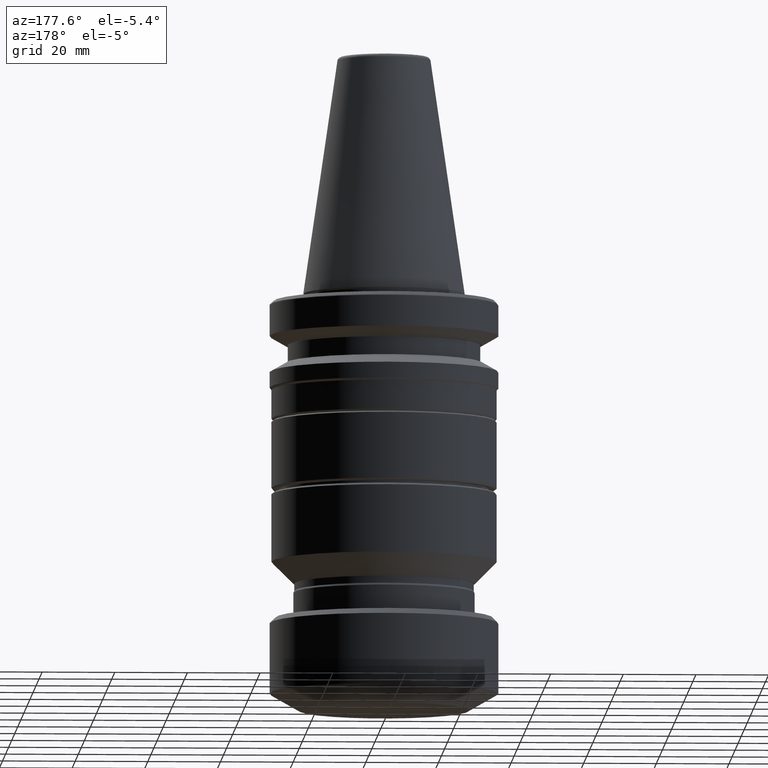
[diagram: clean part render]
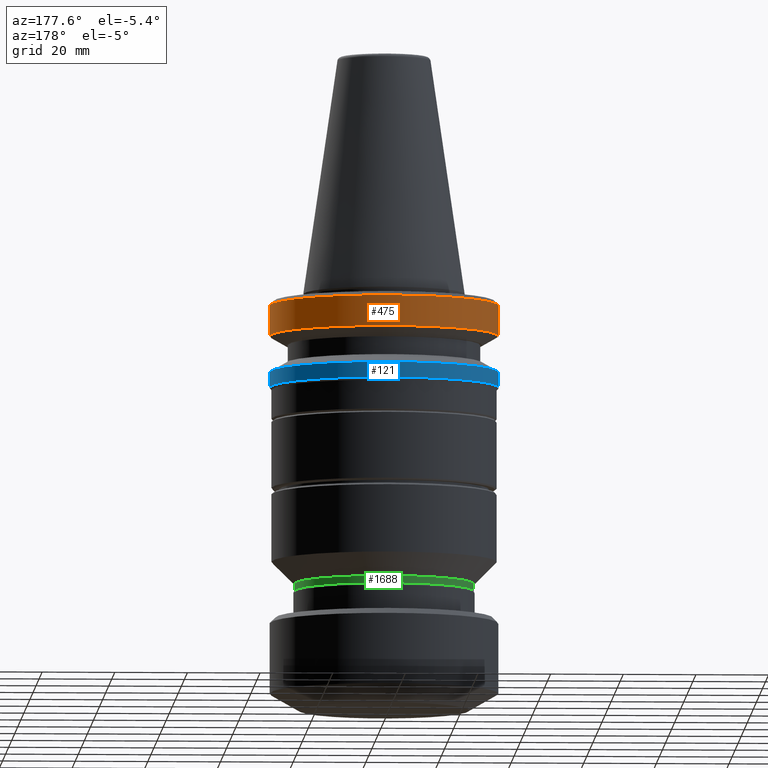
[diagram: same view with three faces highlighted in distinct colors, each labeled with its STEP entity id]
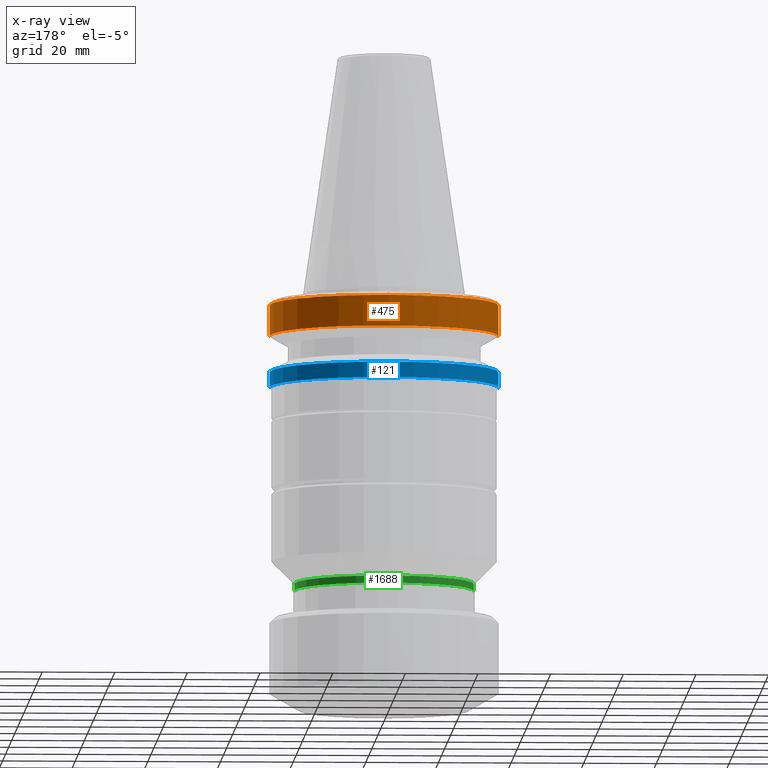
[diagram: x-ray of the same camera — body ghosted, the three highlighted faces saturated]
A machine part, auxiliary view with three faces highlighted in distinct colors.
The next image is the same camera in x-ray (body ghosted, the three faces saturated) — at least one of them is partly hidden behind the body in this view.
Their STEP definitions:

[orange] entity #475 — the highlighted cylindrical surface (partial cylindrical patch) has radius 31.5 mm, axis along (-0, -0, 1).
#4 = EDGE_LOOP ( 'NONE', ( #929, #1041, #1131, #647 ) ) ;
#8 = LINE ( 'NONE', #502, #30 ) ;
#30 = VECTOR ( 'NONE', #1273, 1000.000000000000000 ) ;
#44 = VERTEX_POINT ( 'NONE', #375 ) ;
#66 = CARTESIAN_POINT ( 'NONE',  ( 0.0000000000000000000, 0.0000000000000000000, -3.165685424949243700 ) ) ;
#199 = DIRECTION ( 'NONE',  ( 1.000000000000000000, 0.0000000000000000000, 0.0000000000000000000 ) ) ;
#314 = DIRECTION ( 'NONE',  ( 1.000000000000000000, 0.0000000000000000000, 0.0000000000000000000 ) ) ;
#318 = DIRECTION ( 'NONE',  ( -0.0000000000000000000, -0.0000000000000000000, 1.000000000000000000 ) ) ;
#341 = AXIS2_PLACEMENT_3D ( 'NONE', #66, #1096, #199 ) ;
#375 = CARTESIAN_POINT ( 'NONE',  ( 31.49999999999999300, 0.0000000000000000000, -3.165685424949243700 ) ) ;
#420 = VERTEX_POINT ( 'NONE', #682 ) ;
#475 = ADVANCED_FACE ( 'NONE', ( #854 ), #704, .T. ) ;
#502 = CARTESIAN_POINT ( 'NONE',  ( -31.50000000000000000, 3.857637417314162700E-015, 69.75694866325665100 ) ) ;
#524 = AXIS2_PLACEMENT_3D ( 'NONE', #809, #1888, #978 ) ;
#647 = ORIENTED_EDGE ( 'NONE', *, *, #1059, .F. ) ;
#682 = CARTESIAN_POINT ( 'NONE',  ( -31.50000000000000000, 3.857637417314162700E-015, -11.59985799368323700 ) ) ;
#704 = CYLINDRICAL_SURFACE ( 'NONE', #1426, 31.50000000000000000 ) ;
#745 = CIRCLE ( 'NONE', #524, 31.50000000000000000 ) ;
#794 = CARTESIAN_POINT ( 'NONE',  ( -31.49999999999999300, 3.857637417314161900E-015, -3.165685424949243700 ) ) ;
#809 = CARTESIAN_POINT ( 'NONE',  ( 0.0000000000000000000, 0.0000000000000000000, -11.59985799368323700 ) ) ;
#854 = FACE_OUTER_BOUND ( 'NONE', #4, .T. ) ;
#929 = ORIENTED_EDGE ( 'NONE', *, *, #1485, .T. ) ;
#958 = VERTEX_POINT ( 'NONE', #794 ) ;
#978 = DIRECTION ( 'NONE',  ( 1.000000000000000000, 0.0000000000000000000, 0.0000000000000000000 ) ) ;
#986 = EDGE_CURVE ( 'NONE', #420, #958, #8, .T. ) ;
#1035 = CARTESIAN_POINT ( 'NONE',  ( 31.50000000000000000, 0.0000000000000000000, -11.59985799368323700 ) ) ;
#1041 = ORIENTED_EDGE ( 'NONE', *, *, #986, .T. ) ;
#1059 = EDGE_CURVE ( 'NONE', #1756, #44, #1827, .T. ) ;
#1096 = DIRECTION ( 'NONE',  ( -0.0000000000000000000, -0.0000000000000000000, 1.000000000000000000 ) ) ;
#1131 = ORIENTED_EDGE ( 'NONE', *, *, #1857, .F. ) ;
#1273 = DIRECTION ( 'NONE',  ( -0.0000000000000000000, -0.0000000000000000000, 1.000000000000000000 ) ) ;
#1279 = CARTESIAN_POINT ( 'NONE',  ( 31.50000000000000000, 0.0000000000000000000, 69.75694866325665100 ) ) ;
#1342 = VECTOR ( 'NONE', #1730, 1000.000000000000000 ) ;
#1426 = AXIS2_PLACEMENT_3D ( 'NONE', #1667, #318, #314 ) ;
#1485 = EDGE_CURVE ( 'NONE', #1756, #420, #745, .T. ) ;
#1667 = CARTESIAN_POINT ( 'NONE',  ( 0.0000000000000000000, 0.0000000000000000000, 69.75694866325665100 ) ) ;
#1730 = DIRECTION ( 'NONE',  ( -0.0000000000000000000, -0.0000000000000000000, 1.000000000000000000 ) ) ;
#1756 = VERTEX_POINT ( 'NONE', #1035 ) ;
#1827 = LINE ( 'NONE', #1279, #1342 ) ;
#1849 = CIRCLE ( 'NONE', #341, 31.49999999999999300 ) ;
#1857 = EDGE_CURVE ( 'NONE', #44, #958, #1849, .T. ) ;
#1888 = DIRECTION ( 'NONE',  ( -0.0000000000000000000, -0.0000000000000000000, 1.000000000000000000 ) ) ;

[blue] entity #121 — the highlighted cylindrical surface (partial cylindrical patch) has radius 31.5 mm, axis along (-0, -0, 1).
#17 = CARTESIAN_POINT ( 'NONE',  ( -31.50000000000000000, 3.857637417314162700E-015, -21.60014200631675500 ) ) ;
#69 = AXIS2_PLACEMENT_3D ( 'NONE', #123, #1310, #1460 ) ;
#84 = VERTEX_POINT ( 'NONE', #304 ) ;
#120 = CARTESIAN_POINT ( 'NONE',  ( 0.0000000000000000000, 0.0000000000000000000, -25.83431457505076900 ) ) ;
#121 = ADVANCED_FACE ( 'NONE', ( #1223 ), #1259, .T. ) ;
#123 = CARTESIAN_POINT ( 'NONE',  ( 0.0000000000000000000, 0.0000000000000000000, -21.60014200631675500 ) ) ;
#136 = CIRCLE ( 'NONE', #69, 31.50000000000000000 ) ;
#188 = ORIENTED_EDGE ( 'NONE', *, *, #1556, .T. ) ;
#206 = DIRECTION ( 'NONE',  ( 1.000000000000000000, 0.0000000000000000000, 0.0000000000000000000 ) ) ;
#301 = DIRECTION ( 'NONE',  ( -0.0000000000000000000, -0.0000000000000000000, 1.000000000000000000 ) ) ;
#304 = CARTESIAN_POINT ( 'NONE',  ( 31.50000000000000000, 0.0000000000000000000, -21.60014200631675500 ) ) ;
#349 = VERTEX_POINT ( 'NONE', #382 ) ;
#382 = CARTESIAN_POINT ( 'NONE',  ( 31.50000000000000000, 0.0000000000000000000, -25.83431457505076900 ) ) ;
#401 = DIRECTION ( 'NONE',  ( -0.0000000000000000000, -0.0000000000000000000, 1.000000000000000000 ) ) ;
#427 = DIRECTION ( 'NONE',  ( -0.0000000000000000000, -0.0000000000000000000, 1.000000000000000000 ) ) ;
#437 = ORIENTED_EDGE ( 'NONE', *, *, #1414, .T. ) ;
#441 = DIRECTION ( 'NONE',  ( 1.000000000000000000, 0.0000000000000000000, 0.0000000000000000000 ) ) ;
#504 = LINE ( 'NONE', #731, #1114 ) ;
#551 = AXIS2_PLACEMENT_3D ( 'NONE', #1229, #301, #441 ) ;
#665 = CIRCLE ( 'NONE', #1675, 31.50000000000000000 ) ;
#723 = ORIENTED_EDGE ( 'NONE', *, *, #1681, .F. ) ;
#731 = CARTESIAN_POINT ( 'NONE',  ( 31.50000000000000000, 0.0000000000000000000, 69.75694866325665100 ) ) ;
#823 = EDGE_LOOP ( 'NONE', ( #437, #188, #1803, #723 ) ) ;
#872 = EDGE_CURVE ( 'NONE', #84, #1603, #136, .T. ) ;
#981 = VERTEX_POINT ( 'NONE', #1116 ) ;
#1103 = DIRECTION ( 'NONE',  ( -0.0000000000000000000, -0.0000000000000000000, 1.000000000000000000 ) ) ;
#1114 = VECTOR ( 'NONE', #427, 1000.000000000000000 ) ;
#1116 = CARTESIAN_POINT ( 'NONE',  ( -31.50000000000000000, 3.857637417314162700E-015, -25.83431457505076900 ) ) ;
#1223 = FACE_OUTER_BOUND ( 'NONE', #823, .T. ) ;
#1229 = CARTESIAN_POINT ( 'NONE',  ( 0.0000000000000000000, 0.0000000000000000000, 69.75694866325665100 ) ) ;
#1259 = CYLINDRICAL_SURFACE ( 'NONE', #551, 31.50000000000000000 ) ;
#1310 = DIRECTION ( 'NONE',  ( -0.0000000000000000000, -0.0000000000000000000, 1.000000000000000000 ) ) ;
#1363 = VECTOR ( 'NONE', #401, 1000.000000000000000 ) ;
#1414 = EDGE_CURVE ( 'NONE', #349, #981, #665, .T. ) ;
#1432 = LINE ( 'NONE', #1773, #1363 ) ;
#1460 = DIRECTION ( 'NONE',  ( 1.000000000000000000, 0.0000000000000000000, 0.0000000000000000000 ) ) ;
#1556 = EDGE_CURVE ( 'NONE', #981, #1603, #1432, .T. ) ;
#1603 = VERTEX_POINT ( 'NONE', #17 ) ;
#1675 = AXIS2_PLACEMENT_3D ( 'NONE', #120, #1103, #206 ) ;
#1681 = EDGE_CURVE ( 'NONE', #349, #84, #504, .T. ) ;
#1773 = CARTESIAN_POINT ( 'NONE',  ( -31.50000000000000000, 3.857637417314162700E-015, 69.75694866325665100 ) ) ;
#1803 = ORIENTED_EDGE ( 'NONE', *, *, #872, .F. ) ;

[green] entity #1688 — the highlighted cylindrical surface (partial cylindrical patch) has radius 24.7 mm, axis along (-0, -0, 1).
#77 = ORIENTED_EDGE ( 'NONE', *, *, #1458, .T. ) ;
#193 = EDGE_LOOP ( 'NONE', ( #736, #77, #1161, #1583 ) ) ;
#282 = AXIS2_PLACEMENT_3D ( 'NONE', #1015, #1770, #394 ) ;
#344 = CARTESIAN_POINT ( 'NONE',  ( -24.69999999999961200, 3.024877593893914900E-015, 107.6183603081325900 ) ) ;
#347 = LINE ( 'NONE', #833, #350 ) ;
#350 = VECTOR ( 'NONE', #1440, 1000.000000000000000 ) ;
#380 = AXIS2_PLACEMENT_3D ( 'NONE', #1813, #433, #898 ) ;
#394 = DIRECTION ( 'NONE',  ( 1.000000000000000000, 0.0000000000000000000, 0.0000000000000000000 ) ) ;
#414 = LINE ( 'NONE', #344, #1578 ) ;
#433 = DIRECTION ( 'NONE',  ( -0.0000000000000000000, -0.0000000000000000000, 1.000000000000000000 ) ) ;
#493 = CARTESIAN_POINT ( 'NONE',  ( 0.0000000000000000000, 0.0000000000000000000, -80.05000000000661900 ) ) ;
#518 = CIRCLE ( 'NONE', #282, 24.69999999999961200 ) ;
#603 = FACE_OUTER_BOUND ( 'NONE', #193, .T. ) ;
#638 = EDGE_CURVE ( 'NONE', #1242, #750, #518, .T. ) ;
#641 = DIRECTION ( 'NONE',  ( 1.000000000000000000, 0.0000000000000000000, 0.0000000000000000000 ) ) ;
#710 = CARTESIAN_POINT ( 'NONE',  ( 24.69999999999961200, 0.0000000000000000000, -80.05000000000661900 ) ) ;
#725 = CARTESIAN_POINT ( 'NONE',  ( -24.69999999999961200, 0.0000000000000000000, -82.01387326987941200 ) ) ;
#736 = ORIENTED_EDGE ( 'NONE', *, *, #638, .T. ) ;
#750 = VERTEX_POINT ( 'NONE', #725 ) ;
#757 = EDGE_CURVE ( 'NONE', #1242, #1735, #347, .T. ) ;
#810 = CARTESIAN_POINT ( 'NONE',  ( -24.69999999999961200, 3.024877593893914900E-015, -80.05000000000661900 ) ) ;
#833 = CARTESIAN_POINT ( 'NONE',  ( 24.69999999999961200, 0.0000000000000000000, 107.6183603081325900 ) ) ;
#898 = DIRECTION ( 'NONE',  ( 1.000000000000000000, 0.0000000000000000000, 0.0000000000000000000 ) ) ;
#988 = VERTEX_POINT ( 'NONE', #810 ) ;
#1015 = CARTESIAN_POINT ( 'NONE',  ( 0.0000000000000000000, 0.0000000000000000000, -82.01387326987941200 ) ) ;
#1106 = CARTESIAN_POINT ( 'NONE',  ( 24.69999999999961200, 3.040185678883248100E-015, -82.01387326987941200 ) ) ;
#1161 = ORIENTED_EDGE ( 'NONE', *, *, #1264, .F. ) ;
#1195 = CIRCLE ( 'NONE', #1613, 24.69999999999961200 ) ;
#1242 = VERTEX_POINT ( 'NONE', #1106 ) ;
#1252 = CYLINDRICAL_SURFACE ( 'NONE', #380, 24.69999999999961200 ) ;
#1264 = EDGE_CURVE ( 'NONE', #1735, #988, #1195, .T. ) ;
#1440 = DIRECTION ( 'NONE',  ( -0.0000000000000000000, -0.0000000000000000000, 1.000000000000000000 ) ) ;
#1458 = EDGE_CURVE ( 'NONE', #750, #988, #414, .T. ) ;
#1559 = DIRECTION ( 'NONE',  ( -0.0000000000000000000, -0.0000000000000000000, 1.000000000000000000 ) ) ;
#1578 = VECTOR ( 'NONE', #1870, 1000.000000000000000 ) ;
#1583 = ORIENTED_EDGE ( 'NONE', *, *, #757, .F. ) ;
#1613 = AXIS2_PLACEMENT_3D ( 'NONE', #493, #1559, #641 ) ;
#1688 = ADVANCED_FACE ( 'NONE', ( #603 ), #1252, .T. ) ;
#1735 = VERTEX_POINT ( 'NONE', #710 ) ;
#1770 = DIRECTION ( 'NONE',  ( -0.0000000000000000000, -0.0000000000000000000, 1.000000000000000000 ) ) ;
#1813 = CARTESIAN_POINT ( 'NONE',  ( 0.0000000000000000000, 0.0000000000000000000, 107.6183603081325900 ) ) ;
#1870 = DIRECTION ( 'NONE',  ( -0.0000000000000000000, -0.0000000000000000000, 1.000000000000000000 ) ) ;